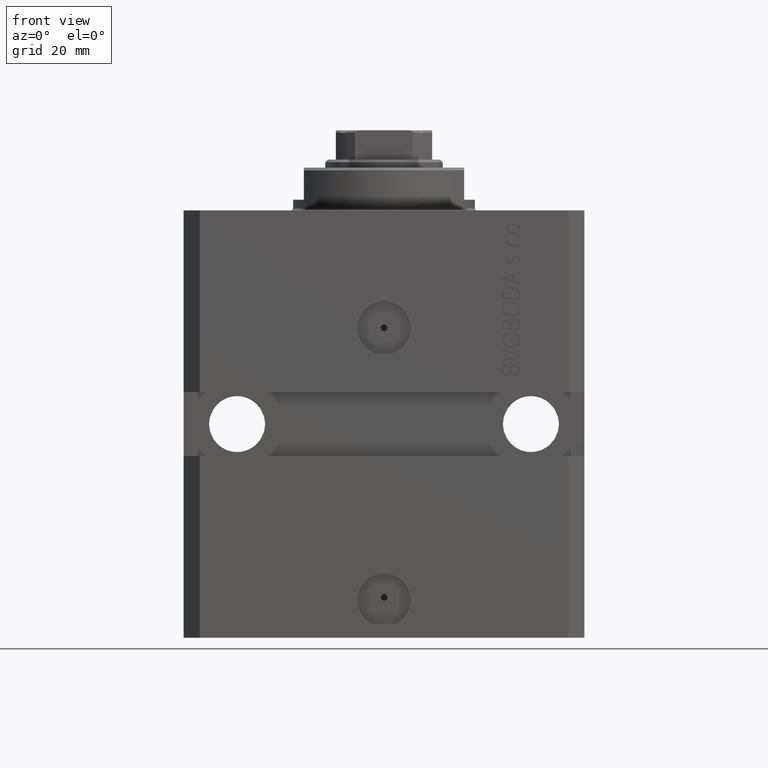
[diagram: clean part render]
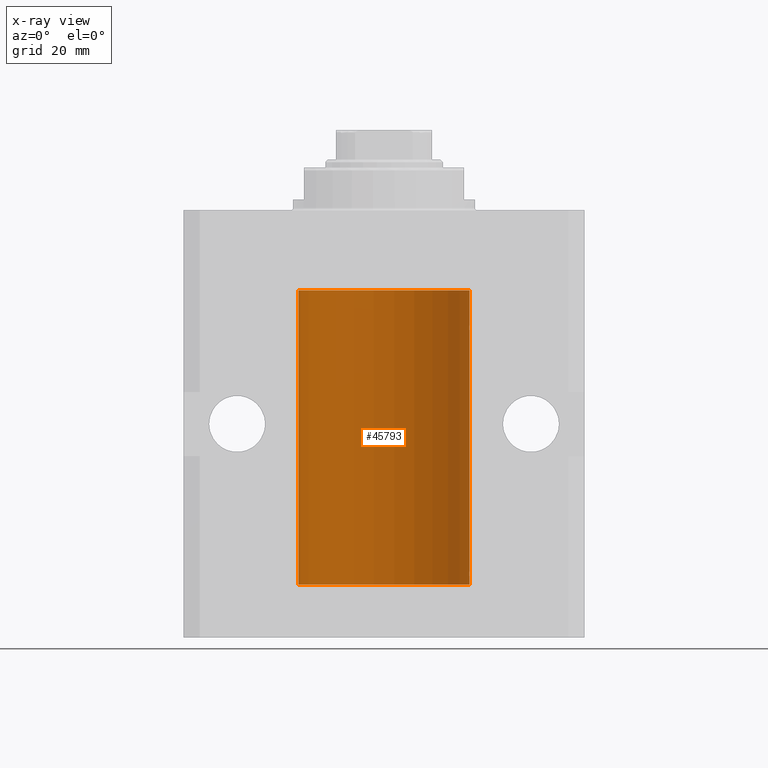
[diagram: x-ray — body ghosted, one internal face saturated and labeled with its STEP entity id]
A machine part, front view, then the same camera in x-ray: the body is ghosted and one INTERNAL B-rep face — a face not visible from any outside direction — is saturated and labeled: STEP entity #45793.
In plain terms, the highlighted cylindrical surface (partial cylindrical patch) has radius 16 mm, axis along (0, 0, 1).
Its self-contained STEP definition (entity closure, byte-faithful):
#708 = CARTESIAN_POINT ( 'NONE',  ( 15.98778830858104172, 0.6249999999996183053, -21.91847885046212951 ) ) ;
#1226 = DIRECTION ( 'NONE',  ( 1.000000000000000000, 0.000000000000000000, 0.000000000000000000 ) ) ;
#1378 = EDGE_CURVE ( 'NONE', #16008, #33947, #23197, .T. ) ;
#2354 = CARTESIAN_POINT ( 'NONE',  ( 15.98778830858103817, 0.6249999999997223332, -67.91847885046213662 ) ) ;
#2529 = CARTESIAN_POINT ( 'NONE',  ( 15.99070366873610283, 0.5574063959867601170, -68.32639436837555991 ) ) ;
#2823 = CARTESIAN_POINT ( 'NONE',  ( 15.98844460043491367, 0.6087869699337551399, -67.83657454967556077 ) ) ;
#2997 = CARTESIAN_POINT ( 'NONE',  ( 15.99548458234361448, 0.3844468804816183471, -68.49947786696357355 ) ) ;
#3053 = CARTESIAN_POINT ( 'NONE',  ( 15.99999999999999645, 0.1631343969470158417, -67.37500000000021316 ) ) ;
#3054 = EDGE_CURVE ( 'NONE', #33947, #45414, #35920, .T. ) ;
#3922 = CARTESIAN_POINT ( 'NONE',  ( 16.00000000000000000, 0.000000000000000000, -15.00000000000000000 ) ) ;
#4229 = CYLINDRICAL_SURFACE ( 'NONE', #42151, 16.00000000000000000 ) ;
#4520 = DIRECTION ( 'NONE',  ( -0.000000000000000000, -0.000000000000000000, 1.000000000000000000 ) ) ;
#4731 = CARTESIAN_POINT ( 'NONE',  ( 15.99999999999999289, 0.1631343969470015476, -21.37500000000020606 ) ) ;
#4968 = ORIENTED_EDGE ( 'NONE', *, *, #42924, .T. ) ;
#4992 = ORIENTED_EDGE ( 'NONE', *, *, #13160, .F. ) ;
#5000 = VERTEX_POINT ( 'NONE', #42516 ) ;
#5629 = CARTESIAN_POINT ( 'NONE',  ( 16.00000000000000000, 0.000000000000000000, -70.09999999999999432 ) ) ;
#5650 = ORIENTED_EDGE ( 'NONE', *, *, #35160, .T. ) ;
#6314 = CARTESIAN_POINT ( 'NONE',  ( 15.98778830858070954, 0.6250000000080517815, -67.99999999999916156 ) ) ;
#6368 = CARTESIAN_POINT ( 'NONE',  ( 15.98778830858070954, 0.6250000000080517815, -67.99999999999916156 ) ) ;
#6848 = DIRECTION ( 'NONE',  ( 1.000000000000000000, 0.000000000000000000, 0.000000000000000000 ) ) ;
#7673 = DIRECTION ( 'NONE',  ( 1.000000000000000000, 0.000000000000000000, 0.000000000000000000 ) ) ;
#8056 = CARTESIAN_POINT ( 'NONE',  ( -16.00000000000000000, 1.959434878635765131E-15, -70.09999999999999432 ) ) ;
#12184 = CARTESIAN_POINT ( 'NONE',  ( 15.99548458234361092, 0.3844468804815581731, -22.49947786696349894 ) ) ;
#12773 = AXIS2_PLACEMENT_3D ( 'NONE', #29227, #18108, #7673 ) ;
#12987 = VECTOR ( 'NONE', #32930, 1000.000000000000000 ) ;
#13027 = ORIENTED_EDGE ( 'NONE', *, *, #36202, .T. ) ;
#13106 = CARTESIAN_POINT ( 'NONE',  ( 15.99934183755190986, 0.1636877470526783007, -22.60872690654068151 ) ) ;
#13160 = EDGE_CURVE ( 'NONE', #33788, #34597, #15134, .T. ) ;
#14403 = DIRECTION ( 'NONE',  ( -0.000000000000000000, -0.000000000000000000, 1.000000000000000000 ) ) ;
#14435 = CARTESIAN_POINT ( 'NONE',  ( 15.99070695999104252, 0.5461439696926363441, -21.68526802364053552 ) ) ;
#15134 = LINE ( 'NONE', #8056, #38230 ) ;
#15731 = CARTESIAN_POINT ( 'NONE',  ( 15.98778830858101685, 0.6250000000001204592, -22.16311639173018833 ) ) ;
#16008 = VERTEX_POINT ( 'NONE', #5629 ) ;
#16087 = CARTESIAN_POINT ( 'NONE',  ( 16.00000000000000000, 0.000000000000000000, -70.09999999999999432 ) ) ;
#16361 = DIRECTION ( 'NONE',  ( 0.000000000000000000, 0.000000000000000000, 1.000000000000000000 ) ) ;
#16930 = EDGE_LOOP ( 'NONE', ( #4992, #28018, #41005, #26381, #13027, #4968, #5650, #31519, #46199, #20586 ) ) ;
#17976 = FACE_OUTER_BOUND ( 'NONE', #16930, .T. ) ;
#18108 = DIRECTION ( 'NONE',  ( 0.000000000000000000, 0.000000000000000000, 1.000000000000000000 ) ) ;
#18467 = CARTESIAN_POINT ( 'NONE',  ( 16.00000000000000000, 0.000000000000000000, -70.09999999999999432 ) ) ;
#18645 = CARTESIAN_POINT ( 'NONE',  ( -16.00000000000000000, 1.959434878635765131E-15, -70.09999999999999432 ) ) ;
#18936 = CARTESIAN_POINT ( 'NONE',  ( 15.99228275317787507, 0.5002975944204000047, -21.61642014570181303 ) ) ;
#19293 = CARTESIAN_POINT ( 'NONE',  ( 15.99070366873610993, 0.5574063959866685236, -22.32639436837549951 ) ) ;
#19911 = CARTESIAN_POINT ( 'NONE',  ( 0.000000000000000000, 0.000000000000000000, -70.09999999999999432 ) ) ;
#20052 = CARTESIAN_POINT ( 'NONE',  ( 15.99707608081895138, 0.3151028052310259620, -68.54594170697733091 ) ) ;
#20517 = CARTESIAN_POINT ( 'NONE',  ( 15.98778830858101685, 0.6250000000002223777, -68.16311639173024162 ) ) ;
#20573 = CARTESIAN_POINT ( 'NONE',  ( 16.00000000000013145, 3.665532692826917502E-13, -67.37499999999657518 ) ) ;
#20586 = ORIENTED_EDGE ( 'NONE', *, *, #25887, .T. ) ;
#20629 = CARTESIAN_POINT ( 'NONE',  ( -16.00000000000000000, 1.959434878635765131E-15, -15.00000000000000000 ) ) ;
#21571 = DIRECTION ( 'NONE',  ( -0.000000000000000000, -0.000000000000000000, 1.000000000000000000 ) ) ;
#21805 = CARTESIAN_POINT ( 'NONE',  ( 16.00000000000000000, -1.835653844722709729E-15, -68.62500000000000000 ) ) ;
#22262 = EDGE_CURVE ( 'NONE', #16008, #33788, #42336, .T. ) ;
#23197 = LINE ( 'NONE', #18467, #12987 ) ;
#23313 = EDGE_CURVE ( 'NONE', #34071, #31050, #31879, .T. ) ;
#23658 = CARTESIAN_POINT ( 'NONE',  ( 15.99228275317786441, 0.5002975944204781644, -67.61642014570176684 ) ) ;
#25205 = VERTEX_POINT ( 'NONE', #44796 ) ;
#25887 = EDGE_CURVE ( 'NONE', #44082, #34597, #34735, .T. ) ;
#26381 = ORIENTED_EDGE ( 'NONE', *, *, #3054, .T. ) ;
#27568 = CARTESIAN_POINT ( 'NONE',  ( 15.99707608081894783, 0.3151028052309810534, -22.54594170697727762 ) ) ;
#27608 = LINE ( 'NONE', #38982, #45837 ) ;
#28018 = ORIENTED_EDGE ( 'NONE', *, *, #22262, .F. ) ;
#28790 = CARTESIAN_POINT ( 'NONE',  ( 16.00000000000000000, -1.835653844722709729E-15, -68.62500000000000000 ) ) ;
#28902 = CARTESIAN_POINT ( 'NONE',  ( 15.98844460043492077, 0.6087869699336542206, -21.83657454967558564 ) ) ;
#29227 = CARTESIAN_POINT ( 'NONE',  ( 0.000000000000000000, 0.000000000000000000, -15.00000000000000000 ) ) ;
#31050 = VERTEX_POINT ( 'NONE', #44057 ) ;
#31129 = CARTESIAN_POINT ( 'NONE',  ( 16.00000000000000000, 6.728408811789801767E-16, -22.62500000000000000 ) ) ;
#31519 = ORIENTED_EDGE ( 'NONE', *, *, #23313, .T. ) ;
#31879 = B_SPLINE_CURVE_WITH_KNOTS ( 'NONE', 3,
 ( #43371, #708, #28902, #14435, #18936, #37174, #4731, #36247 ),
 .UNSPECIFIED., .F., .F.,
 ( 4, 2, 2, 4 ),
 ( 0.0009773326288699728335, 0.001221554802188567438, 0.001465776975507162259, 0.001954221322144344530 ),
 .UNSPECIFIED. ) ;
#31892 = CARTESIAN_POINT ( 'NONE',  ( 15.99934183755190986, 0.1636877470527013101, -68.60872690654070993 ) ) ;
#31951 = CARTESIAN_POINT ( 'NONE',  ( 15.99711856062700477, 0.3252985083514284281, -67.44140297987711108 ) ) ;
#32659 = CARTESIAN_POINT ( 'NONE',  ( 0.000000000000000000, 0.000000000000000000, -70.09999999999999432 ) ) ;
#32930 = DIRECTION ( 'NONE',  ( -0.000000000000000000, -0.000000000000000000, 1.000000000000000000 ) ) ;
#33502 = CARTESIAN_POINT ( 'NONE',  ( 15.98778830858070954, 0.6250000000079481977, -21.99999999999914735 ) ) ;
#33788 = VERTEX_POINT ( 'NONE', #18645 ) ;
#33809 = CARTESIAN_POINT ( 'NONE',  ( 16.00000000000001066, 0.08261762387943044628, -68.62500000000000000 ) ) ;
#33947 = VERTEX_POINT ( 'NONE', #28790 ) ;
#34071 = VERTEX_POINT ( 'NONE', #33502 ) ;
#34447 = CARTESIAN_POINT ( 'NONE',  ( 16.00000000000000711, 0.08261762387942241104, -22.62499999999997158 ) ) ;
#34597 = VERTEX_POINT ( 'NONE', #20629 ) ;
#34735 = CIRCLE ( 'NONE', #12773, 16.00000000000000000 ) ;
#34740 = AXIS2_PLACEMENT_3D ( 'NONE', #19911, #16361, #1226 ) ;
#35160 = EDGE_CURVE ( 'NONE', #5000, #34071, #41845, .T. ) ;
#35920 = B_SPLINE_CURVE_WITH_KNOTS ( 'NONE', 3,
 ( #21805, #33809, #31892, #20052, #2997, #2529, #20517, #6314 ),
 .UNSPECIFIED., .F., .F.,
 ( 4, 2, 2, 4 ),
 ( 1.783888443149829469E-18, 0.0002443331572175257886, 0.0004886663144350497342, 0.0009773326288700682433 ),
 .UNSPECIFIED. ) ;
#36079 = VECTOR ( 'NONE', #4520, 1000.000000000000000 ) ;
#36121 = B_SPLINE_CURVE_WITH_KNOTS ( 'NONE', 3,
 ( #6368, #2354, #2823, #42868, #23658, #31951, #3053, #20573 ),
 .UNSPECIFIED., .F., .F.,
 ( 4, 2, 2, 4 ),
 ( 0.0009773326288700682433, 0.001221554802188685399, 0.001465776975507302772, 0.001954221322144537518 ),
 .UNSPECIFIED. ) ;
#36202 = EDGE_CURVE ( 'NONE', #45414, #25205, #36121, .T. ) ;
#36247 = CARTESIAN_POINT ( 'NONE',  ( 16.00000000000013145, 3.665532684555111376E-13, -21.37499999999658229 ) ) ;
#37174 = CARTESIAN_POINT ( 'NONE',  ( 15.99711856062700122, 0.3252985083513915687, -21.44140297987714661 ) ) ;
#37196 = LINE ( 'NONE', #16087, #36079 ) ;
#38230 = VECTOR ( 'NONE', #21571, 1000.000000000000000 ) ;
#38982 = CARTESIAN_POINT ( 'NONE',  ( 16.00000000000000000, 0.000000000000000000, -70.09999999999999432 ) ) ;
#41005 = ORIENTED_EDGE ( 'NONE', *, *, #1378, .T. ) ;
#41845 = B_SPLINE_CURVE_WITH_KNOTS ( 'NONE', 3,
 ( #31129, #34447, #13106, #27568, #12184, #19293, #15731, #44664 ),
 .UNSPECIFIED., .F., .F.,
 ( 4, 2, 2, 4 ),
 ( 6.538667818360814107E-19, 0.0002443331572174917989, 0.0004886663144349829473, 0.0009773326288699728335 ),
 .UNSPECIFIED. ) ;
#42151 = AXIS2_PLACEMENT_3D ( 'NONE', #32659, #14403, #6848 ) ;
#42336 = CIRCLE ( 'NONE', #34740, 16.00000000000000000 ) ;
#42461 = CARTESIAN_POINT ( 'NONE',  ( 15.98778830858070954, 0.6250000000080517815, -67.99999999999916156 ) ) ;
#42516 = CARTESIAN_POINT ( 'NONE',  ( 16.00000000000000000, 6.728408811789801767E-16, -22.62500000000000000 ) ) ;
#42868 = CARTESIAN_POINT ( 'NONE',  ( 15.99070695999103542, 0.5461439696927204990, -67.68526802364047512 ) ) ;
#42924 = EDGE_CURVE ( 'NONE', #25205, #5000, #27608, .T. ) ;
#43371 = CARTESIAN_POINT ( 'NONE',  ( 15.98778830858070954, 0.6250000000079481977, -21.99999999999914735 ) ) ;
#44057 = CARTESIAN_POINT ( 'NONE',  ( 16.00000000000013145, 3.665532684555111376E-13, -21.37499999999658229 ) ) ;
#44082 = VERTEX_POINT ( 'NONE', #3922 ) ;
#44664 = CARTESIAN_POINT ( 'NONE',  ( 15.98778830858070954, 0.6250000000079481977, -21.99999999999914735 ) ) ;
#44796 = CARTESIAN_POINT ( 'NONE',  ( 16.00000000000013145, 3.665532692826917502E-13, -67.37499999999657518 ) ) ;
#45414 = VERTEX_POINT ( 'NONE', #42461 ) ;
#45545 = EDGE_CURVE ( 'NONE', #31050, #44082, #37196, .T. ) ;
#45637 = DIRECTION ( 'NONE',  ( -0.000000000000000000, -0.000000000000000000, 1.000000000000000000 ) ) ;
#45793 = ADVANCED_FACE ( 'NONE', ( #17976 ), #4229, .F. ) ;
#45837 = VECTOR ( 'NONE', #45637, 1000.000000000000000 ) ;
#46199 = ORIENTED_EDGE ( 'NONE', *, *, #45545, .T. ) ;